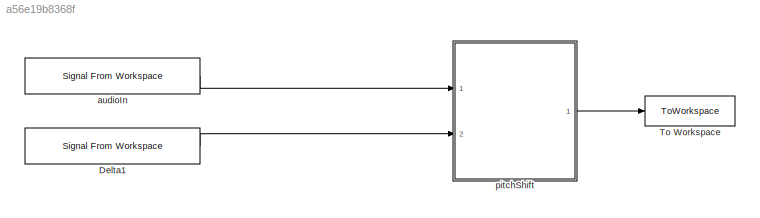
MODEL slx_a56e19b8368f
KIND model
CONFIG AbsTol = auto
CONFIG EnableMultiTasking = off
CONFIG FixedStep = auto
CONFIG InitFcn = initCallback
CONFIG MaxStep = auto
CONFIG MinStep = auto
CONFIG PostLoadFcn = postLoadCallback
CONFIG RelTol = 1e-3
CONFIG SampleTimeConstraint = Unconstrained
CONFIG SolverName = VariableStepAuto
CONFIG StartTime = 0.0
CONFIG StopFcn = stopCallback
CONFIG StopTime = 10.0
BLOCK [Reference] Delta1  REF=dspsrcs4/Signal From
Workspace
  Ports = [0, 1]
  SourceBlock = dspsrcs4/Signal From\nWorkspace
  SourceProductBaseCode = DS
  SourceType = Signal From Workspace
BLOCK [ToWorkspace] To Workspace
  FixptAsFi = on
  MaxDataPoints = inf
  Ports = [1]
  SampleTime = modelParams.audio.samplePeriod
  Save2DSignal = 2-D array (concatenate along first dimension)
  VariableName = AudioOut
BLOCK [Reference] audioIn  REF=dspsrcs4/Signal From
Workspace
  Ports = [0, 1]
  SourceBlock = dspsrcs4/Signal From\nWorkspace
  SourceProductBaseCode = DS
  SourceType = Signal From Workspace
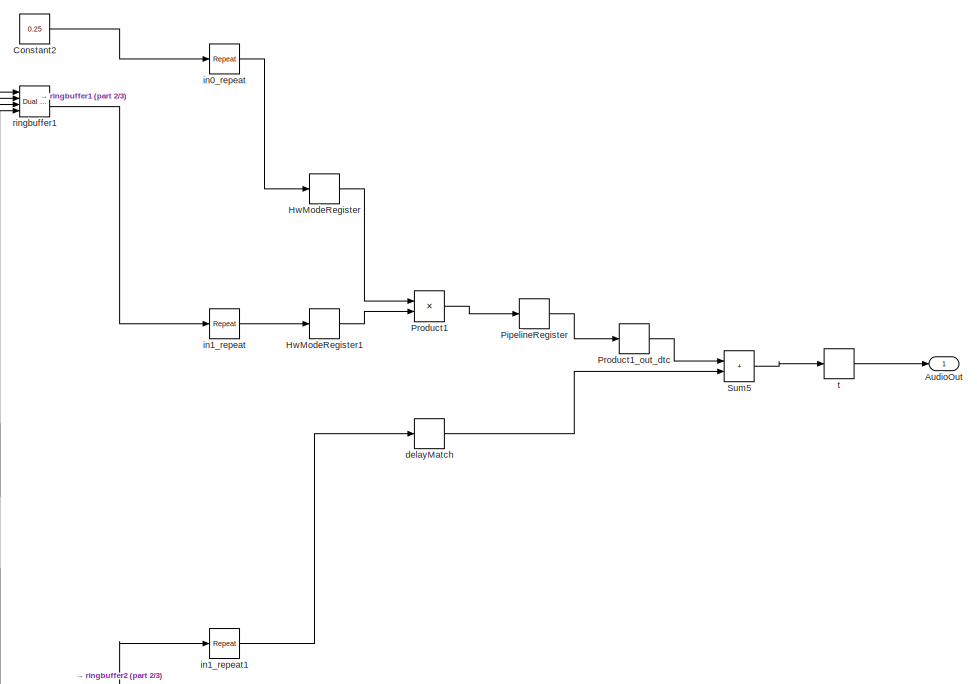
[diagram: pitchShift - part 1/3, right side, full height]
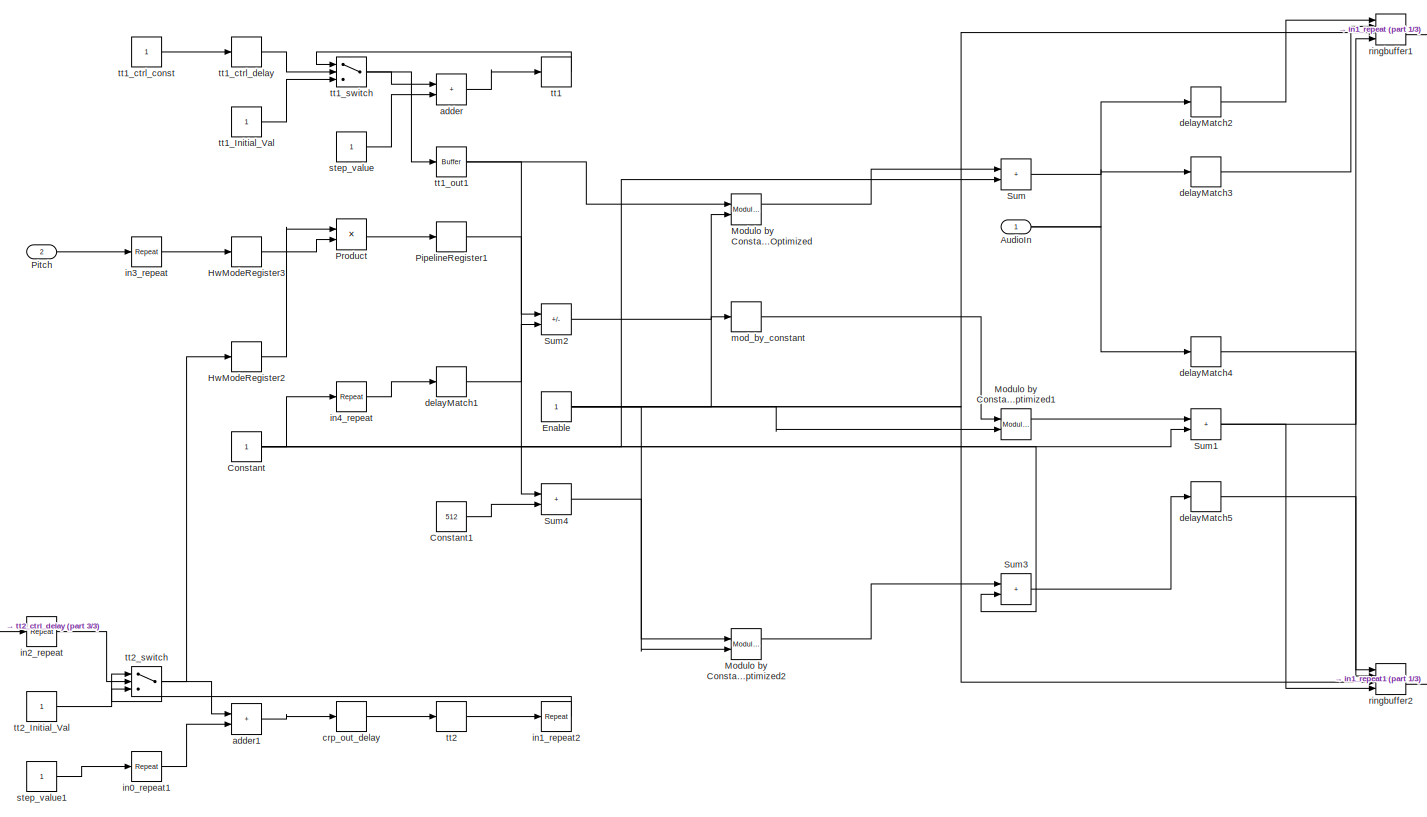
[diagram: pitchShift - part 2/3, center side, full height]
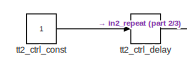
[diagram: pitchShift - part 3/3, bottom left region]
BLOCK [SubSystem] pitchShift
  Ports = [2, 1]
  RequestExecContextInheritance = off
BLOCK [Inport] pitchShift/AudioIn
  OutDataTypeStr = fixdt(1, 24, 23)
  PortDimensions = 1
  SampleTime = 2.08333333333333e-05
BLOCK [Outport] pitchShift/AudioOut
  SampleTime = 2.08333333333333e-05
BLOCK [Constant] pitchShift/Constant
  OutDataTypeStr = uint32
  SampleTime = 2.08333333333333e-05
BLOCK [Constant] pitchShift/Constant1
  OutDataTypeStr = uint32
  SampleTime = 2.08333333333333e-05
  Value = 512
BLOCK [Constant] pitchShift/Constant2
  OutDataTypeStr = fixdt(0, 24, 23)
  SampleTime = 2.08333333333333e-05
  Value = 0.25
BLOCK [Constant] pitchShift/Enable
  OutDataTypeStr = boolean
  SampleTime = 2.08333333333333e-05
BLOCK [Delay] pitchShift/HwModeRegister
  DelayLength = double(1)
  InitialCondition = 0
  InputPortMap = u0
  Ports = [1, 1]
  SampleTime = 1.01725260416667e-08
BLOCK [Delay] pitchShift/HwModeRegister1
  DelayLength = double(1)
  InitialCondition = 0
  InputPortMap = u0
  Ports = [1, 1]
  SampleTime = 1.01725260416667e-08
BLOCK [Delay] pitchShift/HwModeRegister2
  DelayLength = double(1)
  InitialCondition = 0
  InputPortMap = u0
  Ports = [1, 1]
  SampleTime = 1.01725260416667e-08
BLOCK [Delay] pitchShift/HwModeRegister3
  DelayLength = double(1)
  InitialCondition = 0
  InputPortMap = u0
  Ports = [1, 1]
  SampleTime = 1.01725260416667e-08
BLOCK [Reference] pitchShift/Modulo by Constant HDL Optimized  REF=embmathops/Modulo by Constant
HDL Optimized
  Ports = [2, 2]
  SourceBlock = embmathops/Modulo by Constant\nHDL Optimized
  SourceProductBaseCode = SL
  SourceType = fixed.system.internal.modbyconstant_hdl
BLOCK [Reference] pitchShift/Modulo by Constant HDL Optimized1  REF=embmathops/Modulo by Constant
HDL Optimized
  Ports = [2, 2]
  SourceBlock = embmathops/Modulo by Constant\nHDL Optimized
  SourceProductBaseCode = SL
  SourceType = fixed.system.internal.modbyconstant_hdl
BLOCK [Reference] pitchShift/Modulo by Constant HDL Optimized2  REF=embmathops/Modulo by Constant
HDL Optimized
  Ports = [2, 2]
  SourceBlock = embmathops/Modulo by Constant\nHDL Optimized
  SourceProductBaseCode = SL
  SourceType = fixed.system.internal.modbyconstant_hdl
BLOCK [Delay] pitchShift/PipelineRegister
  DelayLength = double(1)
  InitialCondition = 0
  InputPortMap = u0
  Ports = [1, 1]
  SampleTime = 1.01725260416667e-08
BLOCK [Delay] pitchShift/PipelineRegister1
  DelayLength = double(1)
  InitialCondition = 0
  InputPortMap = u0
  Ports = [1, 1]
  SampleTime = 1.01725260416667e-08
BLOCK [Inport] pitchShift/Pitch
  OutDataTypeStr = fixdt(1, 24, 23)
  Port = 2
  PortDimensions = 1
  SampleTime = 2.08333333333333e-05
BLOCK [Product] pitchShift/Product
  Inputs = **
  OutDataTypeStr = fixdt(1, 56, 23)
  Ports = [2, 1]
  SampleTime = 1.01725260416667e-08
BLOCK [Product] pitchShift/Product1
  Inputs = **
  OutDataTypeStr = fixdt(1, 48, 46)
  Ports = [2, 1]
  SampleTime = 1.01725260416667e-08
BLOCK [DataTypeConversion] pitchShift/Product1_out_dtc
  OutDataTypeStr = fixdt(1, 24, 23)
  RndMeth = Floor
  SampleTime = 1.01725260416667e-08
BLOCK [Sum] pitchShift/Sum
  AccumDataTypeStr = fixdt(0, 33, 0)
  IconShape = rectangular
  OutDataTypeStr = fixdt(0, 10, 0)
  Ports = [2, 1]
  SampleTime = 2.08333333333333e-05
BLOCK [Sum] pitchShift/Sum1
  AccumDataTypeStr = fixdt(0, 33, 0)
  IconShape = rectangular
  OutDataTypeStr = fixdt(0, 10, 0)
  Ports = [2, 1]
  SampleTime = 2.08333333333333e-05
BLOCK [Sum] pitchShift/Sum2
  AccumDataTypeStr = fixdt(1, 57, 23)
  IconShape = rectangular
  Inputs = +-
  OutDataTypeStr = fixdt(0, 10, 0)
  Ports = [2, 1]
  SampleTime = 1.01725260416667e-08
BLOCK [Sum] pitchShift/Sum3
  AccumDataTypeStr = fixdt(0, 33, 0)
  IconShape = rectangular
  OutDataTypeStr = fixdt(0, 10, 0)
  Ports = [2, 1]
  SampleTime = 2.08333333333333e-05
BLOCK [Sum] pitchShift/Sum4
  AccumDataTypeStr = fixdt(0, 33, 0)
  IconShape = rectangular
  OutDataTypeStr = fixdt(0, 10, 0)
  Ports = [2, 1]
  SampleTime = 2.08333333333333e-05
BLOCK [Sum] pitchShift/Sum5
  AccumDataTypeStr = fixdt(1, 25, 23)
  IconShape = rectangular
  OutDataTypeStr = fixdt(1, 24, 23)
  Ports = [2, 1]
  SampleTime = 1.01725260416667e-08
  SaturateOnIntegerOverflow = on
BLOCK [Sum] pitchShift/adder
  AccumDataTypeStr = fixdt(0, 10, 0)
  IconShape = rectangular
  OutDataTypeStr = fixdt(0, 10, 0)
  Ports = [2, 1]
  SampleTime = 2.08333333333333e-05
BLOCK [Sum] pitchShift/adder1
  AccumDataTypeStr = uint32
  IconShape = rectangular
  OutDataTypeStr = uint32
  Ports = [2, 1]
  SampleTime = 1.01725260416667e-08
BLOCK [Delay] pitchShift/crp_out_delay
  DelayLength = double(1)
  InitialCondition = 0
  InputPortMap = u0
  Ports = [1, 1]
  SampleTime = 1.01725260416667e-08
BLOCK [Delay] pitchShift/delayMatch
  DelayLength = double(1)
  InitialCondition = 0
  InputPortMap = u0
  Ports = [1, 1]
  SampleTime = 1.01725260416667e-08
BLOCK [Delay] pitchShift/delayMatch1
  DelayLength = double(1)
  InitialCondition = 0
  InputPortMap = u0
  Ports = [1, 1]
  SampleTime = 1.01725260416667e-08
BLOCK [Delay] pitchShift/delayMatch2
  DelayLength = double(1)
  InitialCondition = 0
  InputPortMap = u0
  Ports = [1, 1]
  SampleTime = 2.08333333333333e-05
BLOCK [Delay] pitchShift/delayMatch3
  DelayLength = double(1)
  InitialCondition = 0
  InputPortMap = u0
  Ports = [1, 1]
  SampleTime = 2.08333333333333e-05
BLOCK [Delay] pitchShift/delayMatch4
  DelayLength = double(1)
  InitialCondition = 0
  InputPortMap = u0
  Ports = [1, 1]
  SampleTime = 2.08333333333333e-05
BLOCK [Delay] pitchShift/delayMatch5
  DelayLength = double(1)
  InitialCondition = 0
  InputPortMap = u0
  Ports = [1, 1]
  SampleTime = 2.08333333333333e-05
BLOCK [Reference] pitchShift/in0_repeat  REF=dspsigops/Repeat
  Ports = [1, 1]
  SourceBlock = dspsigops/Repeat
  SourceProductBaseCode = DS
  SourceType = Repeat
  UserDataPersistent = on
BLOCK [Reference] pitchShift/in0_repeat1  REF=dspsigops/Repeat
  Ports = [1, 1]
  SourceBlock = dspsigops/Repeat
  SourceProductBaseCode = DS
  SourceType = Repeat
  UserDataPersistent = on
BLOCK [Reference] pitchShift/in1_repeat  REF=dspsigops/Repeat
  Ports = [1, 1]
  SourceBlock = dspsigops/Repeat
  SourceProductBaseCode = DS
  SourceType = Repeat
  UserDataPersistent = on
BLOCK [Reference] pitchShift/in1_repeat1  REF=dspsigops/Repeat
  Ports = [1, 1]
  SourceBlock = dspsigops/Repeat
  SourceProductBaseCode = DS
  SourceType = Repeat
  UserDataPersistent = on
BLOCK [Reference] pitchShift/in1_repeat2  REF=dspsigops/Repeat
  Ports = [1, 1]
  SourceBlock = dspsigops/Repeat
  SourceProductBaseCode = DS
  SourceType = Repeat
  UserDataPersistent = on
BLOCK [Reference] pitchShift/in2_repeat  REF=dspsigops/Repeat
  Ports = [1, 1]
  SourceBlock = dspsigops/Repeat
  SourceProductBaseCode = DS
  SourceType = Repeat
  UserDataPersistent = on
BLOCK [Reference] pitchShift/in3_repeat  REF=dspsigops/Repeat
  Ports = [1, 1]
  SourceBlock = dspsigops/Repeat
  SourceProductBaseCode = DS
  SourceType = Repeat
  UserDataPersistent = on
BLOCK [Reference] pitchShift/in4_repeat  REF=dspsigops/Repeat
  Ports = [1, 1]
  SourceBlock = dspsigops/Repeat
  SourceProductBaseCode = DS
  SourceType = Repeat
  UserDataPersistent = on
BLOCK [RateTransition] pitchShift/mod_by_constant
  OutPortSampleTimeMultiple = 2048
  OutPortSampleTimeOpt = Multiple of input port sample time
BLOCK [Reference] pitchShift/ringbuffer1  REF=hdlsllib/HDL RAMs/Dual Port RAM
  Ports = [4, 2]
  SourceBlock = hdlsllib/HDL RAMs/Dual Port RAM
  SourceProductBaseCode = SL
  SourceType = Dual-port RAM
BLOCK [Reference] pitchShift/ringbuffer2  REF=hdlsllib/HDL RAMs/Dual Port RAM
  Ports = [4, 2]
  SourceBlock = hdlsllib/HDL RAMs/Dual Port RAM
  SourceProductBaseCode = SL
  SourceType = Dual-port RAM
BLOCK [Constant] pitchShift/step_value
  OutDataTypeStr = fixdt(0, 10, 0)
  SampleTime = 2.08333333333333e-05
  VectorParams1D = off
BLOCK [Constant] pitchShift/step_value1
  OutDataTypeStr = uint32
  SampleTime = 2.08333333333333e-05
  VectorParams1D = off
BLOCK [RateTransition] pitchShift/t
  OutPortSampleTimeMultiple = 2048
  OutPortSampleTimeOpt = Multiple of input port sample time
BLOCK [Delay] pitchShift/tt1
  DelayLength = double(1)
  InitialCondition = 0
  InputPortMap = u0
  Ports = [1, 1]
  SampleTime = 2.08333333333333e-05
BLOCK [Constant] pitchShift/tt1_Initial_Val
  OutDataTypeStr = fixdt(0, 10, 0)
  SampleTime = 2.08333333333333e-05
BLOCK [Constant] pitchShift/tt1_ctrl_const
  OutDataTypeStr = boolean
  SampleTime = 2.08333333333333e-05
BLOCK [Delay] pitchShift/tt1_ctrl_delay
  DelayLength = double(1)
  InitialCondition = 0
  InputPortMap = u0
  Ports = [1, 1]
  SampleTime = 2.08333333333333e-05
BLOCK [Reference] pitchShift/tt1_out1  REF=hdlmdlgenlib/Buffer
  Ports = [1, 1]
  SourceBlock = hdlmdlgenlib/Buffer
  SourceProductBaseCode = SL
  SourceType = Buffer/Wire
BLOCK [Switch] pitchShift/tt1_switch
  Criteria = u2 ~= 0
  InputSameDT = off
  OutDataTypeStr = fixdt(0, 10, 0)
  SampleTime = 2.08333333333333e-05
  SaturateOnIntegerOverflow = off
  Threshold = double(0)
BLOCK [RateTransition] pitchShift/tt2
  OutPortSampleTimeMultiple = 2048
  OutPortSampleTimeOpt = Multiple of input port sample time
BLOCK [Constant] pitchShift/tt2_Initial_Val
  OutDataTypeStr = uint32
  SampleTime = 1.01725260416667e-08
BLOCK [Constant] pitchShift/tt2_ctrl_const
  OutDataTypeStr = boolean
  SampleTime = 2.08333333333333e-05
BLOCK [Delay] pitchShift/tt2_ctrl_delay
  DelayLength = double(1)
  InitialCondition = 0
  InputPortMap = u0
  Ports = [1, 1]
  SampleTime = 2.08333333333333e-05
BLOCK [Switch] pitchShift/tt2_switch
  Criteria = u2 ~= 0
  InputSameDT = off
  OutDataTypeStr = uint32
  SampleTime = 1.01725260416667e-08
  SaturateOnIntegerOverflow = off
  Threshold = double(0)
LINE Delta1:1 -> pitchShift:2
LINE audioIn:1 -> pitchShift:1
NET pitchShift/AudioIn:1 -> pitchShift/delayMatch2:1, pitchShift/delayMatch4:1
LINE pitchShift/Constant1:1 -> pitchShift/Sum4:2
LINE pitchShift/Constant2:1 -> pitchShift/in0_repeat:1
NET pitchShift/Constant:1 -> pitchShift/Sum1:2, pitchShift/Sum3:2, pitchShift/Sum:2, pitchShift/in4_repeat:1
NET pitchShift/Enable:1 -> pitchShift/Modulo by Constant HDL Optimized1:2, pitchShift/Modulo by Constant HDL Optimized2:2, pitchShift/Modulo by Constant HDL Optimized:2, pitchShift/ringbuffer1:3, pitchShift/ringbuffer2:3
LINE pitchShift/HwModeRegister1:1 -> pitchShift/Product1:2
LINE pitchShift/HwModeRegister2:1 -> pitchShift/Product:1
LINE pitchShift/HwModeRegister3:1 -> pitchShift/Product:2
LINE pitchShift/HwModeRegister:1 -> pitchShift/Product1:1
LINE pitchShift/Modulo by Constant HDL Optimized1:1 -> pitchShift/Sum1:1
LINE pitchShift/Modulo by Constant HDL Optimized2:1 -> pitchShift/Sum3:1
LINE pitchShift/Modulo by Constant HDL Optimized:1 -> pitchShift/Sum:1
LINE pitchShift/PipelineRegister1:1 -> pitchShift/Sum2:1
LINE pitchShift/PipelineRegister:1 -> pitchShift/Product1_out_dtc:1
LINE pitchShift/Pitch:1 -> pitchShift/in3_repeat:1
LINE pitchShift/Product1:1 -> pitchShift/PipelineRegister:1
LINE pitchShift/Product1_out_dtc:1 -> pitchShift/Sum5:1
LINE pitchShift/Product:1 -> pitchShift/PipelineRegister1:1
NET pitchShift/Sum1:1 -> pitchShift/ringbuffer1:4, pitchShift/ringbuffer2:4
LINE pitchShift/Sum2:1 -> pitchShift/mod_by_constant:1
LINE pitchShift/Sum3:1 -> pitchShift/delayMatch5:1
LINE pitchShift/Sum4:1 -> pitchShift/Modulo by Constant HDL Optimized2:1
LINE pitchShift/Sum5:1 -> pitchShift/t:1
LINE pitchShift/Sum:1 -> pitchShift/delayMatch3:1
LINE pitchShift/adder1:1 -> pitchShift/crp_out_delay:1
LINE pitchShift/adder:1 -> pitchShift/tt1:1
LINE pitchShift/crp_out_delay:1 -> pitchShift/tt2:1
LINE pitchShift/delayMatch1:1 -> pitchShift/Sum2:2
LINE pitchShift/delayMatch2:1 -> pitchShift/ringbuffer1:1
LINE pitchShift/delayMatch3:1 -> pitchShift/ringbuffer1:2
LINE pitchShift/delayMatch4:1 -> pitchShift/ringbuffer2:1
LINE pitchShift/delayMatch5:1 -> pitchShift/ringbuffer2:2
LINE pitchShift/delayMatch:1 -> pitchShift/Sum5:2
LINE pitchShift/in0_repeat1:1 -> pitchShift/adder1:2
LINE pitchShift/in0_repeat:1 -> pitchShift/HwModeRegister:1
LINE pitchShift/in1_repeat1:1 -> pitchShift/delayMatch:1
LINE pitchShift/in1_repeat2:1 -> pitchShift/tt2_switch:1
LINE pitchShift/in1_repeat:1 -> pitchShift/HwModeRegister1:1
LINE pitchShift/in2_repeat:1 -> pitchShift/tt2_switch:2
LINE pitchShift/in3_repeat:1 -> pitchShift/HwModeRegister3:1
LINE pitchShift/in4_repeat:1 -> pitchShift/delayMatch1:1
LINE pitchShift/mod_by_constant:1 -> pitchShift/Modulo by Constant HDL Optimized1:1
LINE pitchShift/ringbuffer1:2 -> pitchShift/in1_repeat:1
LINE pitchShift/ringbuffer2:2 -> pitchShift/in1_repeat1:1
LINE pitchShift/step_value1:1 -> pitchShift/in0_repeat1:1
LINE pitchShift/step_value:1 -> pitchShift/adder:2
LINE pitchShift/t:1 -> pitchShift/AudioOut:1
LINE pitchShift/tt1:1 -> pitchShift/tt1_switch:1
LINE pitchShift/tt1_Initial_Val:1 -> pitchShift/tt1_switch:3
LINE pitchShift/tt1_ctrl_const:1 -> pitchShift/tt1_ctrl_delay:1
LINE pitchShift/tt1_ctrl_delay:1 -> pitchShift/tt1_switch:2
NET pitchShift/tt1_out1:1 -> pitchShift/Modulo by Constant HDL Optimized:1, pitchShift/Sum4:1
NET pitchShift/tt1_switch:1 -> pitchShift/adder:1, pitchShift/tt1_out1:1
LINE pitchShift/tt2:1 -> pitchShift/in1_repeat2:1
LINE pitchShift/tt2_Initial_Val:1 -> pitchShift/tt2_switch:3
LINE pitchShift/tt2_ctrl_const:1 -> pitchShift/tt2_ctrl_delay:1
LINE pitchShift/tt2_ctrl_delay:1 -> pitchShift/in2_repeat:1
NET pitchShift/tt2_switch:1 -> pitchShift/HwModeRegister2:1, pitchShift/adder1:1
LINE pitchShift:1 -> To Workspace:1
note: NET lines group one-source signal fan-out (src -> all destinations, sorted); 1:1 wires keep LINE
